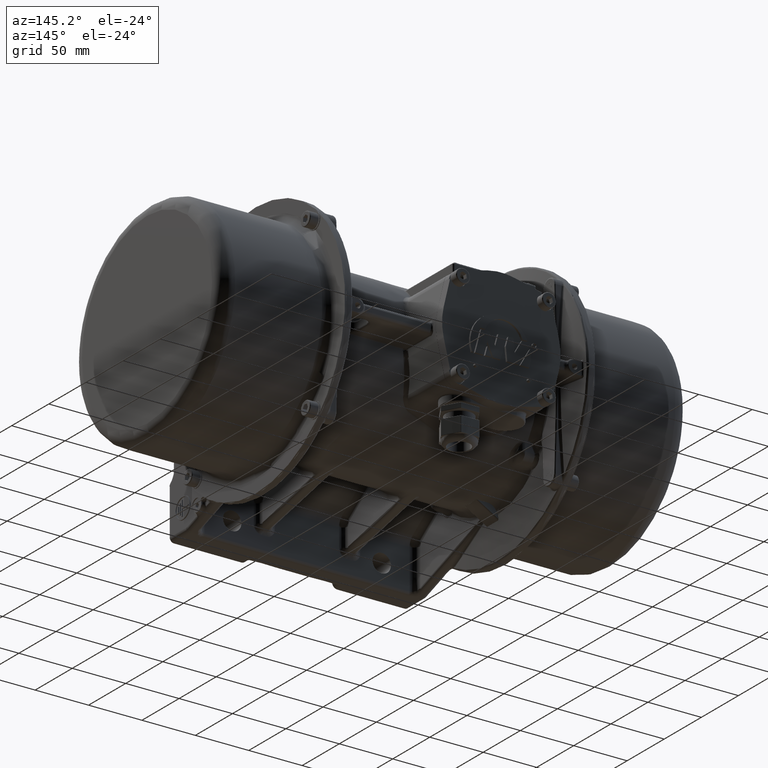
[diagram: clean part render]
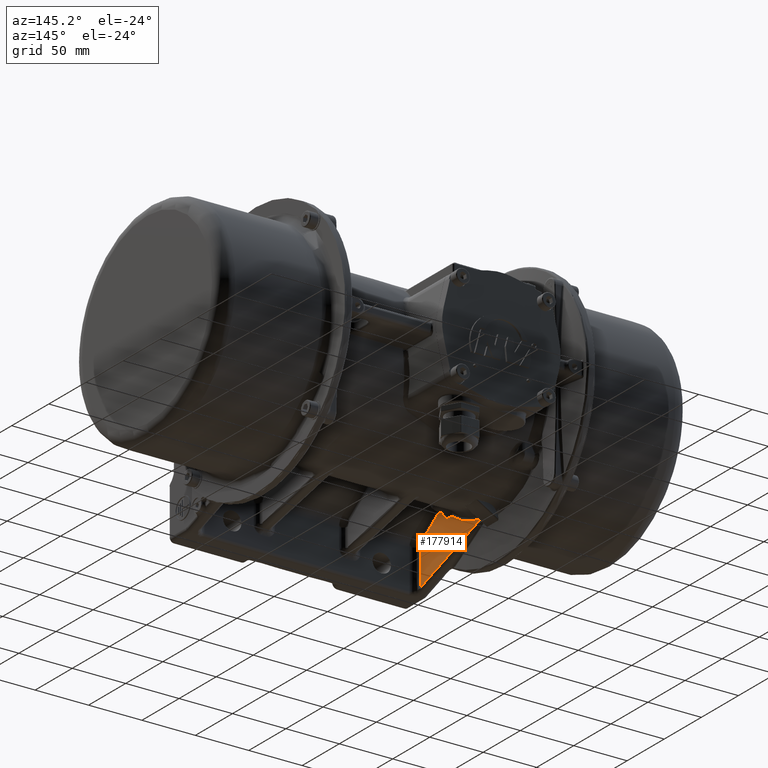
[diagram: same view with one face highlighted and labeled with its STEP entity id]
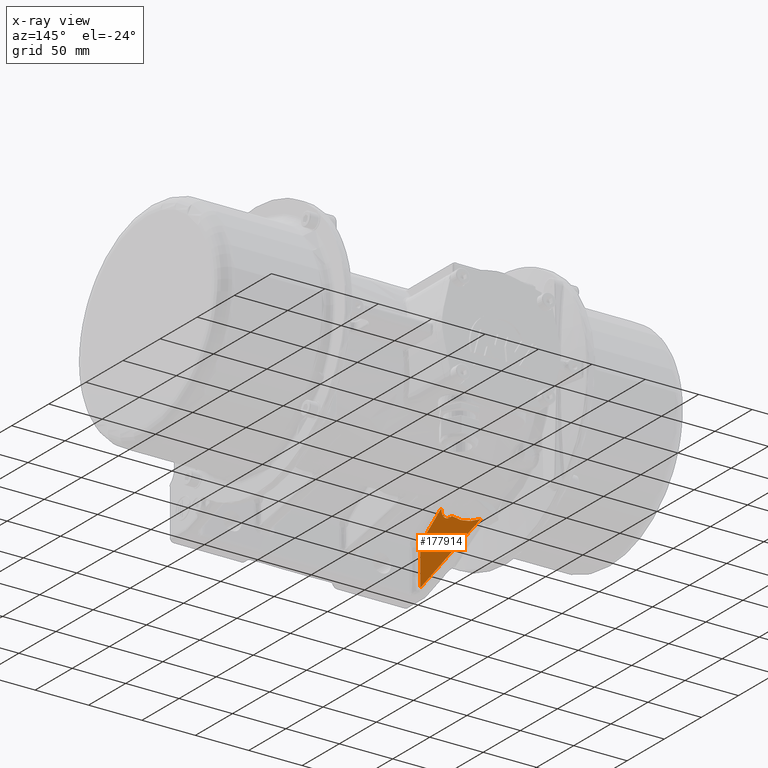
[diagram: x-ray of the same camera — body ghosted, the highlighted face saturated]
A machine part, auxiliary view. The second image highlights one B-rep face of the part: STEP entity #177914.
The next image is the same camera in x-ray: the body ghosted, the highlighted face saturated — about 0% of this face is hidden behind the body in this view.
In plain terms, the highlighted planar face has unit normal (1, 0, 0).
Its self-contained STEP definition (entity closure, byte-faithful):
#8418 = EDGE_LOOP ( 'NONE', ( #72036, #72038 ) ) ;
#8442 = EDGE_LOOP ( 'NONE', ( #72040, #72042, #72044, #72046, #72047, #72049, #72051, #72053, #72055 ) ) ;
#10905 = CARTESIAN_POINT ( 'NONE',  ( -107.3579503167726000, -57.39182797672899700, -109.7611722767020100 ) ) ;
#10911 = CARTESIAN_POINT ( 'NONE',  ( -107.3579503167726000, 24.09302962068335000, -81.70368574094089800 ) ) ;
#10915 = CARTESIAN_POINT ( 'NONE',  ( -107.3579503167726000, -14.71157126770208000, -65.09366876077089600 ) ) ;
#10921 = CARTESIAN_POINT ( 'NONE',  ( -107.3579503167310100, -29.21170508526670100, -53.77308553306659900 ) ) ;
#10947 = CARTESIAN_POINT ( 'NONE',  ( -107.3579503167726000, -55.68613372212090700, -71.59971238022761500 ) ) ;
#10949 = CARTESIAN_POINT ( 'NONE',  ( -107.3579503167726000, -31.25535744007590500, -54.49309866294469600 ) ) ;
#10951 = CARTESIAN_POINT ( 'NONE',  ( -107.3579503167726000, -57.39182797671669800, -74.87632055738349400 ) ) ;
#10953 = CARTESIAN_POINT ( 'NONE',  ( -107.3579503167726000, -17.98549673748760100, -65.09366876077089600 ) ) ;
#10955 = CARTESIAN_POINT ( 'NONE',  ( -107.3579503167726000, -28.81838202062190000, -56.00379871510710900 ) ) ;
#72036 = ORIENTED_EDGE ( 'NONE', *, *, #182278, .F. ) ;
#72038 = ORIENTED_EDGE ( 'NONE', *, *, #72424, .F. ) ;
#72040 = ORIENTED_EDGE ( 'NONE', *, *, #72412, .T. ) ;
#72042 = ORIENTED_EDGE ( 'NONE', *, *, #72410, .T. ) ;
#72044 = ORIENTED_EDGE ( 'NONE', *, *, #72369, .T. ) ;
#72046 = ORIENTED_EDGE ( 'NONE', *, *, #72393, .T. ) ;
#72047 = ORIENTED_EDGE ( 'NONE', *, *, #72395, .T. ) ;
#72049 = ORIENTED_EDGE ( 'NONE', *, *, #72387, .T. ) ;
#72051 = ORIENTED_EDGE ( 'NONE', *, *, #72402, .T. ) ;
#72053 = ORIENTED_EDGE ( 'NONE', *, *, #72405, .T. ) ;
#72055 = ORIENTED_EDGE ( 'NONE', *, *, #72398, .T. ) ;
#72369 = EDGE_CURVE ( 'NONE', #174164, #174163, #97244, .T. ) ;
#72387 = EDGE_CURVE ( 'NONE', #174142, #174145, #97269, .T. ) ;
#72393 = EDGE_CURVE ( 'NONE', #174163, #174165, #116927, .T. ) ;
#72395 = EDGE_CURVE ( 'NONE', #174165, #174142, #97260, .T. ) ;
#72398 = EDGE_CURVE ( 'NONE', #174166, #174167, #116937, .T. ) ;
#72402 = EDGE_CURVE ( 'NONE', #174145, #174147, #116947, .T. ) ;
#72405 = EDGE_CURVE ( 'NONE', #174147, #174166, #97285, .T. ) ;
#72410 = EDGE_CURVE ( 'NONE', #174150, #174164, #116962, .T. ) ;
#72412 = EDGE_CURVE ( 'NONE', #174167, #174150, #97279, .T. ) ;
#72424 = EDGE_CURVE ( 'NONE', #206222, #206220, #97314, .T. ) ;
#72660 = CIRCLE ( 'NONE', #142029, 3.400000000000000400 ) ;
#95913 = CARTESIAN_POINT ( 'NONE',  ( -107.3579503167726000, -43.44107619995249800, -79.54951288348610200 ) ) ;
#95921 = DIRECTION ( 'NONE',  ( 1.000000000000000000, 0.0000000000000000000, 0.0000000000000000000 ) ) ;
#95923 = DIRECTION ( 'NONE',  ( 0.0000000000000000000, 0.0000000000000000000, -1.000000000000000000 ) ) ;
#97228 = VECTOR ( 'NONE', #121482, 1000.000000000000000 ) ;
#97244 = LINE ( 'NONE', #121201, #97248 ) ;
#97248 = VECTOR ( 'NONE', #121203, 1000.000000000000100 ) ;
#97260 = LINE ( 'NONE', #121385, #97264 ) ;
#97264 = VECTOR ( 'NONE', #121387, 1000.000000000000000 ) ;
#97269 = LINE ( 'NONE', #121329, #97272 ) ;
#97272 = VECTOR ( 'NONE', #121331, 1000.000000000000100 ) ;
#97279 = LINE ( 'NONE', #121602, #97291 ) ;
#97285 = LINE ( 'NONE', #121451, #97228 ) ;
#97291 = VECTOR ( 'NONE', #121604, 1000.000000000000000 ) ;
#97314 = CIRCLE ( 'NONE', #125122, 3.400000000000000400 ) ;
#101574 = CARTESIAN_POINT ( 'NONE',  ( -107.3579503167726000, -43.44107619995249800, -76.14951288348611100 ) ) ;
#101576 = CARTESIAN_POINT ( 'NONE',  ( -107.3579503167726000, -43.44107619995249800, -82.94951288348610800 ) ) ;
#116927 = B_SPLINE_CURVE_WITH_KNOTS ( 'NONE', 3,
 ( #121333, #121365, #121367, #121369, #121371, #121373, #121375, #121377, #121379, #121381 ),
 .UNSPECIFIED., .F., .F.,
 ( 4, 2, 2, 2, 4 ),
 ( 0.0000000000000000000, 0.2500000000000000000, 0.5000000000000000000, 0.7500000000000000000, 1.000000000000000000 ),
 .UNSPECIFIED. ) ;
#116937 = B_SPLINE_CURVE_WITH_KNOTS ( 'NONE', 3,
 ( #121383, #121403, #121405, #121407, #121409, #121411, #121413, #121415, #121417, #121419, #121421, #121423, #121425, #121427, #121429, #121431, #121433, #121435 ),
 .UNSPECIFIED., .F., .F.,
 ( 4, 2, 2, 2, 2, 2, 2, 2, 4 ),
 ( 0.0000000000000000000, 0.1249999999999991100, 0.2499999999999982200, 0.3749999999999973400, 0.4999999999999964500, 0.6249999999999973400, 0.7499999999999982200, 0.8749999999999991100, 1.000000000000000000 ),
 .UNSPECIFIED. ) ;
#116947 = B_SPLINE_CURVE_WITH_KNOTS ( 'NONE', 3,
 ( #121400, #121454, #121456, #121458, #121460, #121462, #121464, #121466, #121468, #121470 ),
 .UNSPECIFIED., .F., .F.,
 ( 4, 2, 2, 2, 4 ),
 ( 0.0000000000000000000, 0.2500000000000001100, 0.5000000000000001100, 0.7500000000000001100, 1.000000000000000000 ),
 .UNSPECIFIED. ) ;
#116962 = B_SPLINE_CURVE_WITH_KNOTS ( 'NONE', 3,
 ( #121536, #121553, #121555, #121557, #121559, #121561, #121563, #121565, #121567, #121569, #121571, #121573, #121575, #121577, #121579, #121581, #121583, #121585, #121587, #121589, #121591, #121593, #121595, #121597, #121599 ),
 .UNSPECIFIED., .F., .F.,
 ( 4, 1, 1, 1, 1, 2, 2, 1, 1, 1, 2, 2, 1, 1, 2, 2, 4 ),
 ( 0.0000000000000000000, 0.2500000000000205400, 0.3750000000000284800, 0.4375000000000314700, 0.4687500000000345300, 0.4843750000000380800, 0.5000000000000416300, 0.6250000000000475200, 0.6875000000000464100, 0.7187500000000457400, 0.7343750000000454100, 0.7500000000000451900, 0.8125000000000252000, 0.8437500000000172100, 0.8593750000000175400, 0.8750000000000177600, 1.000000000000000000 ),
 .UNSPECIFIED. ) ;
#121201 = CARTESIAN_POINT ( 'NONE',  ( -107.3579503167726000, -31.25530625082360100, -54.49306282012440100 ) ) ;
#121203 = DIRECTION ( 'NONE',  ( 0.0000000000000000000, -0.8191520442889919100, -0.5735764363510458300 ) ) ;
#121329 = CARTESIAN_POINT ( 'NONE',  ( -107.3579503167726000, -57.39182797671669800, -109.7611722767020100 ) ) ;
#121331 = DIRECTION ( 'NONE',  ( 0.0000000000000000000, 0.9455185755993171800, 0.3255681544571554800 ) ) ;
#121333 = CARTESIAN_POINT ( 'NONE',  ( -107.3579503167726000, -55.68613372212090700, -71.59971238022761500 ) ) ;
#121365 = CARTESIAN_POINT ( 'NONE',  ( -107.3579503167725700, -55.94947957376595600, -71.78421775557947600 ) ) ;
#121367 = CARTESIAN_POINT ( 'NONE',  ( -107.3579503167726200, -56.18747177640386100, -71.99764342502227500 ) ) ;
#121369 = CARTESIAN_POINT ( 'NONE',  ( -107.3579503167726000, -56.61090263686141800, -72.48023116894432900 ) ) ;
#121371 = CARTESIAN_POINT ( 'NONE',  ( -107.3579503167726200, -56.79146278614683000, -72.74433187718690900 ) ) ;
#121373 = CARTESIAN_POINT ( 'NONE',  ( -107.3579503167726300, -57.08827983271241600, -73.31432033170003100 ) ) ;
#121375 = CARTESIAN_POINT ( 'NONE',  ( -107.3579503167726200, -57.20086418805209400, -73.61365378176635900 ) ) ;
#121377 = CARTESIAN_POINT ( 'NONE',  ( -107.3579503167726400, -57.35352832388742400, -74.23750019439141600 ) ) ;
#121379 = CARTESIAN_POINT ( 'NONE',  ( -107.3579503167726200, -57.39173889746973600, -74.55441471749300300 ) ) ;
#121381 = CARTESIAN_POINT ( 'NONE',  ( -107.3579503167726000, -57.39182797671669800, -74.87632055738349400 ) ) ;
#121383 = CARTESIAN_POINT ( 'NONE',  ( -107.3579503167726000, -17.98549673748760100, -65.09366876077089600 ) ) ;
#121385 = CARTESIAN_POINT ( 'NONE',  ( -107.3579503167726000, -57.39182797671669800, -81.48402651500190100 ) ) ;
#121387 = DIRECTION ( 'NONE',  ( 0.0000000000000000000, 0.0000000000000000000, -1.000000000000000000 ) ) ;
#121400 = CARTESIAN_POINT ( 'NONE',  ( -107.3579503167726000, 24.09302962068335000, -81.70368574094089800 ) ) ;
#121403 = CARTESIAN_POINT ( 'NONE',  ( -107.3579503167726200, -18.62304775863182400, -65.09360413918192000 ) ) ;
#121405 = CARTESIAN_POINT ( 'NONE',  ( -107.3579503167726000, -19.25759965651581500, -65.03796639179006400 ) ) ;
#121407 = CARTESIAN_POINT ( 'NONE',  ( -107.3579503167726200, -20.52741895550187600, -64.81436241328825100 ) ) ;
#121409 = CARTESIAN_POINT ( 'NONE',  ( -107.3579503167725900, -21.14645970188266200, -64.64883832959037600 ) ) ;
#121411 = CARTESIAN_POINT ( 'NONE',  ( -107.3579503167725900, -22.34897692625721200, -64.21173684924144700 ) ) ;
#121413 = CARTESIAN_POINT ( 'NONE',  ( -107.3579503167725900, -22.93015179663523300, -63.94044210081538200 ) ) ;
#121415 = CARTESIAN_POINT ( 'NONE',  ( -107.3579503167726000, -24.04210124226823800, -63.29827419349103200 ) ) ;
#121417 = CARTESIAN_POINT ( 'NONE',  ( -107.3579503167725900, -24.56600802718740800, -62.93140237662380100 ) ) ;
#121419 = CARTESIAN_POINT ( 'NONE',  ( -107.3579503167726400, -25.54631286089168500, -62.10891289353556000 ) ) ;
#121421 = CARTESIAN_POINT ( 'NONE',  ( -107.3579503167726200, -25.99769130368446200, -61.65754058301156700 ) ) ;
#121423 = CARTESIAN_POINT ( 'NONE',  ( -107.3579503167726400, -26.82489901696453000, -60.67215985591964500 ) ) ;
#121425 = CARTESIAN_POINT ( 'NONE',  ( -107.3579503167726200, -27.19210514304448300, -60.14777554976019000 ) ) ;
#121427 = CARTESIAN_POINT ( 'NONE',  ( -107.3579503167726400, -27.83144721518841900, -59.03956197178171500 ) ) ;
#121429 = CARTESIAN_POINT ( 'NONE',  ( -107.3579503167726200, -28.10237097324983300, -58.45717291604314200 ) ) ;
#121431 = CARTESIAN_POINT ( 'NONE',  ( -107.3579503167726400, -28.54217537207076900, -57.24833238619767400 ) ) ;
#121433 = CARTESIAN_POINT ( 'NONE',  ( -107.3579503167726700, -28.70754498805796800, -56.63201440752659700 ) ) ;
#121435 = CARTESIAN_POINT ( 'NONE',  ( -107.3579503167726000, -28.81838202062190000, -56.00379871510710900 ) ) ;
#121451 = CARTESIAN_POINT ( 'NONE',  ( -107.3579503167726000, -16.64939917801664700, -65.09366876077079700 ) ) ;
#121454 = CARTESIAN_POINT ( 'NONE',  ( -107.3579503167726000, 20.56932660067164400, -81.18545061913850700 ) ) ;
#121456 = CARTESIAN_POINT ( 'NONE',  ( -107.3579503167726300, 17.09220560614334900, -80.44199902725728200 ) ) ;
#121458 = CARTESIAN_POINT ( 'NONE',  ( -107.3579503167726300, 10.23808039652323900, -78.50662611846813400 ) ) ;
#121460 = CARTESIAN_POINT ( 'NONE',  ( -107.3579503167725900, 6.886208615777465300, -77.32152076582367800 ) ) ;
#121462 = CARTESIAN_POINT ( 'NONE',  ( -107.3579503167725900, 0.3367122091313360900, -74.51812682454441000 ) ) ;
#121464 = CARTESIAN_POINT ( 'NONE',  ( -107.3579503167726200, -2.833757301456739000, -72.91143392798844000 ) ) ;
#121466 = CARTESIAN_POINT ( 'NONE',  ( -107.3579503167726000, -8.967018670449260000, -69.28753648403056800 ) ) ;
#121468 = CARTESIAN_POINT ( 'NONE',  ( -107.3579503167725900, -11.90415811205022600, -67.28559766895104100 ) ) ;
#121470 = CARTESIAN_POINT ( 'NONE',  ( -107.3579503167726000, -14.71157126770208000, -65.09366876077089600 ) ) ;
#121482 = DIRECTION ( 'NONE',  ( 0.0000000000000000000, -1.000000000000000000, 0.0000000000000000000 ) ) ;
#121536 = CARTESIAN_POINT ( 'NONE',  ( -107.3579503167310100, -29.21170508526670100, -53.77308553306659900 ) ) ;
#121553 = CARTESIAN_POINT ( 'NONE',  ( -107.3579503167726400, -29.38857199202753300, -53.76175060264038300 ) ) ;
#121555 = CARTESIAN_POINT ( 'NONE',  ( -107.3579503167726300, -29.65620759472561100, -53.77658508036554300 ) ) ;
#121557 = CARTESIAN_POINT ( 'NONE',  ( -107.3579503167725700, -29.97256730574229200, -53.84960434895432300 ) ) ;
#121559 = CARTESIAN_POINT ( 'NONE',  ( -107.3579503167725900, -30.13177670488454400, -53.90004207772609800 ) ) ;
#121561 = CARTESIAN_POINT ( 'NONE',  ( -107.3579503167725900, -30.21163879036414500, -53.92874296573131000 ) ) ;
#121563 = CARTESIAN_POINT ( 'NONE',  ( -107.3579503167725900, -30.24592055255006800, -53.94178949422340000 ) ) ;
#121565 = CARTESIAN_POINT ( 'NONE',  ( -107.3579503167725600, -30.26878731714585400, -53.95065299053334200 ) ) ;
#121567 = CARTESIAN_POINT ( 'NONE',  ( -107.3579503167726000, -30.28137484850772100, -53.95562878850358900 ) ) ;
#121569 = CARTESIAN_POINT ( 'NONE',  ( -107.3579503167726300, -30.37405340998276800, -53.99285651731619900 ) ) ;
#121571 = CARTESIAN_POINT ( 'NONE',  ( -107.3579503167725900, -30.49800930832270800, -54.04759187661753800 ) ) ;
#121573 = CARTESIAN_POINT ( 'NONE',  ( -107.3579503167725900, -30.64329736837247600, -54.12037197401711100 ) ) ;
#121575 = CARTESIAN_POINT ( 'NONE',  ( -107.3579503167726000, -30.71610960972731900, -54.15899256727058700 ) ) ;
#121577 = CARTESIAN_POINT ( 'NONE',  ( -107.3579503167726200, -30.74735090130724300, -54.17602222392643100 ) ) ;
#121579 = CARTESIAN_POINT ( 'NONE',  ( -107.3579503167726300, -30.76818643909052000, -54.18748154477098200 ) ) ;
#121581 = CARTESIAN_POINT ( 'NONE',  ( -107.3579503167726300, -30.77997361455664900, -54.19402860307361200 ) ) ;
#121583 = CARTESIAN_POINT ( 'NONE',  ( -107.3579503167726000, -30.82527550161736900, -54.21938653883800200 ) ) ;
#121585 = CARTESIAN_POINT ( 'NONE',  ( -107.3579503167725900, -30.88211811712614000, -54.25237888167399800 ) ) ;
#121587 = CARTESIAN_POINT ( 'NONE',  ( -107.3579503167726000, -30.95277511619927000, -54.29535488317368000 ) ) ;
#121589 = CARTESIAN_POINT ( 'NONE',  ( -107.3579503167726000, -30.98398681886908800, -54.31473422700020100 ) ) ;
#121591 = CARTESIAN_POINT ( 'NONE',  ( -107.3579503167726300, -31.00500131656862700, -54.32786735787773600 ) ) ;
#121593 = CARTESIAN_POINT ( 'NONE',  ( -107.3579503167725900, -31.01658284390358100, -54.33515514399039900 ) ) ;
#121595 = CARTESIAN_POINT ( 'NONE',  ( -107.3579503167726000, -31.10426997210011300, -54.39064641928309400 ) ) ;
#121597 = CARTESIAN_POINT ( 'NONE',  ( -107.3579503167726400, -31.18063089582697600, -54.44125097412304400 ) ) ;
#121599 = CARTESIAN_POINT ( 'NONE',  ( -107.3579503167726000, -31.25535744007590500, -54.49309866294469600 ) ) ;
#121602 = CARTESIAN_POINT ( 'NONE',  ( -107.3579503167726000, -28.81838202062190000, -56.00379871510710900 ) ) ;
#121604 = DIRECTION ( 'NONE',  ( 0.0000000000000000000, -0.1736481776669489800, 0.9848077530122048000 ) ) ;
#121707 = CARTESIAN_POINT ( 'NONE',  ( -107.3579503167726000, -43.44107619995249800, -79.54951288348610200 ) ) ;
#121910 = DIRECTION ( 'NONE',  ( 1.000000000000000000, 0.0000000000000000000, 0.0000000000000000000 ) ) ;
#121912 = DIRECTION ( 'NONE',  ( 0.0000000000000000000, 0.0000000000000000000, -1.000000000000000000 ) ) ;
#125122 = AXIS2_PLACEMENT_3D ( 'NONE', #121707, #121910, #121912 ) ;
#141109 = AXIS2_PLACEMENT_3D ( 'NONE', #182149, #182177, #182179 ) ;
#142029 = AXIS2_PLACEMENT_3D ( 'NONE', #95913, #95921, #95923 ) ;
#156456 = FACE_OUTER_BOUND ( 'NONE', #8442, .T. ) ;
#156457 = FACE_BOUND ( 'NONE', #8418, .T. ) ;
#174142 = VERTEX_POINT ( 'NONE', #10905 ) ;
#174145 = VERTEX_POINT ( 'NONE', #10911 ) ;
#174147 = VERTEX_POINT ( 'NONE', #10915 ) ;
#174150 = VERTEX_POINT ( 'NONE', #10921 ) ;
#174163 = VERTEX_POINT ( 'NONE', #10947 ) ;
#174164 = VERTEX_POINT ( 'NONE', #10949 ) ;
#174165 = VERTEX_POINT ( 'NONE', #10951 ) ;
#174166 = VERTEX_POINT ( 'NONE', #10953 ) ;
#174167 = VERTEX_POINT ( 'NONE', #10955 ) ;
#177914 = ADVANCED_FACE ( 'NONE', ( #156457, #156456 ), #182175, .T. ) ;
#182149 = CARTESIAN_POINT ( 'NONE',  ( -107.3579503167726000, -57.39298736819909400, -53.20572136181970500 ) ) ;
#182175 = PLANE ( 'NONE',  #141109 ) ;
#182177 = DIRECTION ( 'NONE',  ( 1.000000000000000000, 0.0000000000000000000, 0.0000000000000000000 ) ) ;
#182179 = DIRECTION ( 'NONE',  ( 0.0000000000000000000, 0.0000000000000000000, -1.000000000000000000 ) ) ;
#182278 = EDGE_CURVE ( 'NONE', #206220, #206222, #72660, .T. ) ;
#206220 = VERTEX_POINT ( 'NONE', #101574 ) ;
#206222 = VERTEX_POINT ( 'NONE', #101576 ) ;